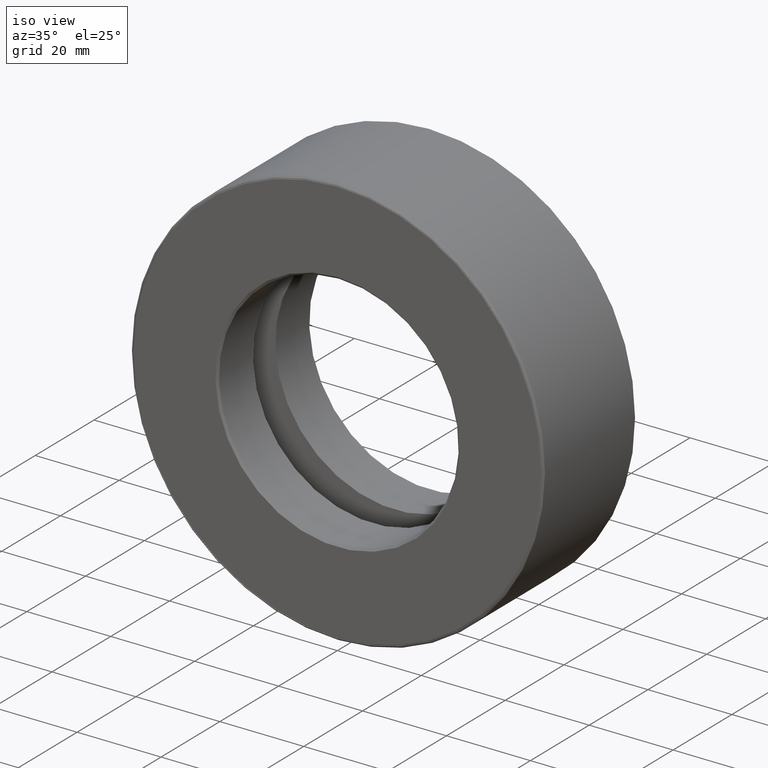
[diagram: clean part render]
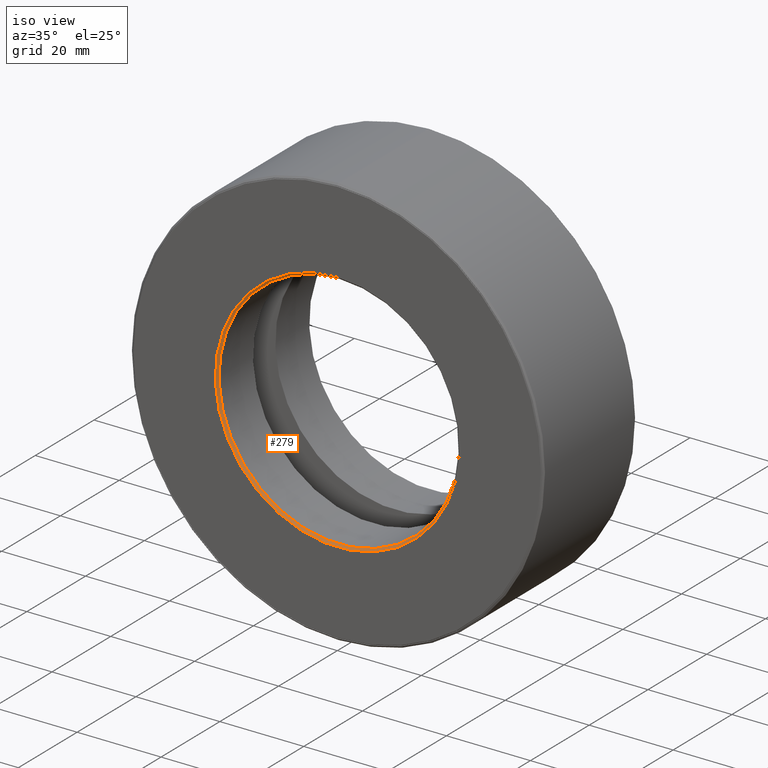
[diagram: same view with one face highlighted and labeled with its STEP entity id]
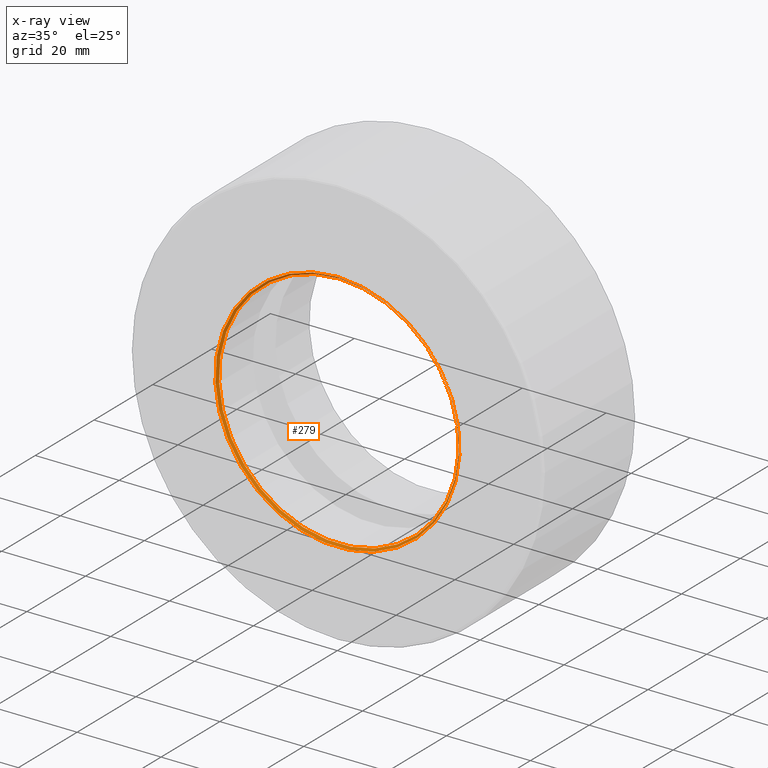
[diagram: x-ray of the same camera — body ghosted, the highlighted face saturated]
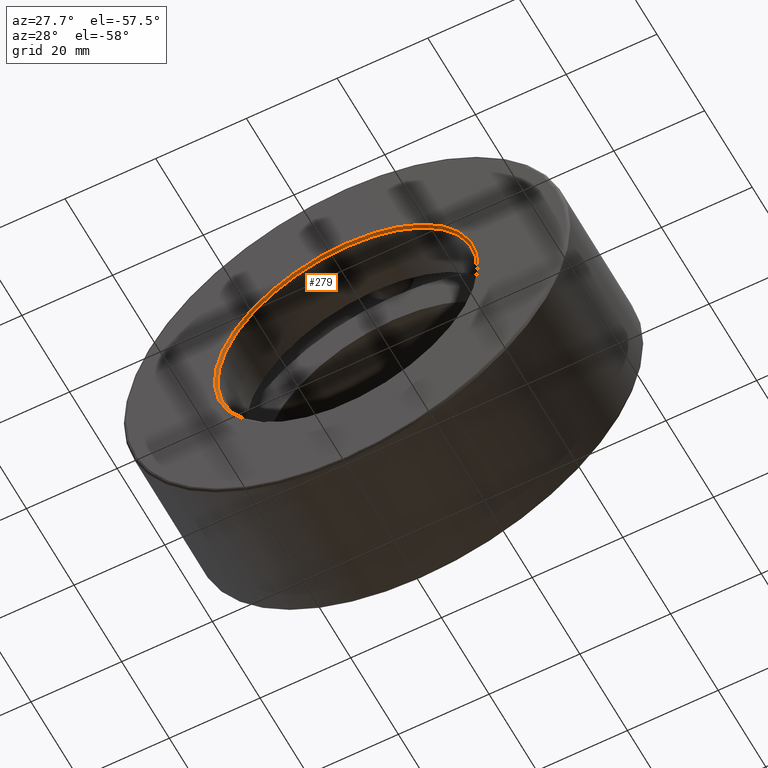
[diagram: same view with one face highlighted and labeled with its STEP entity id]
A machine part, iso view. The second image highlights one B-rep face of the part: STEP entity #279.
The next image is the same camera in x-ray: the body ghosted, the highlighted face saturated — about 0% of this face is hidden behind the body in this view.
A second angle (auxiliary view) of the same face is appended — the face is thin or edge-on in the first view.
In plain terms, the highlighted conical surface has half-angle 45 deg.
Its self-contained STEP definition (entity closure, byte-faithful):
#17 = DIRECTION ( 'NONE',  ( 0.0000000000000000000, 0.0000000000000000000, -1.000000000000000000 ) ) ;
#28 = AXIS2_PLACEMENT_3D ( 'NONE', #521, #386, #59 ) ;
#58 = ORIENTED_EDGE ( 'NONE', *, *, #103, .F. ) ;
#59 = DIRECTION ( 'NONE',  ( 0.0000000000000000000, 0.0000000000000000000, 1.000000000000000000 ) ) ;
#75 = DIRECTION ( 'NONE',  ( -0.0000000000000000000, 1.000000000000000000, -0.0000000000000000000 ) ) ;
#103 = EDGE_CURVE ( 'NONE', #207, #207, #479, .T. ) ;
#106 = ORIENTED_EDGE ( 'NONE', *, *, #351, .T. ) ;
#108 = CARTESIAN_POINT ( 'NONE',  ( 0.0000000000000000000, 0.02000000000000033300, 0.0000000000000000000 ) ) ;
#166 = CIRCLE ( 'NONE', #211, 1.125000000000000000 ) ;
#179 = AXIS2_PLACEMENT_3D ( 'NONE', #108, #426, #17 ) ;
#207 = VERTEX_POINT ( 'NONE', #498 ) ;
#211 = AXIS2_PLACEMENT_3D ( 'NONE', #359, #75, #397 ) ;
#279 = ADVANCED_FACE ( 'NONE', ( #546, #360 ), #487, .F. ) ;
#351 = EDGE_CURVE ( 'NONE', #585, #585, #166, .T. ) ;
#359 = CARTESIAN_POINT ( 'NONE',  ( 0.0000000000000000000, 0.02000000000000033300, 0.0000000000000000000 ) ) ;
#360 = FACE_BOUND ( 'NONE', #599, .T. ) ;
#386 = DIRECTION ( 'NONE',  ( -0.0000000000000000000, 1.000000000000000000, -0.0000000000000000000 ) ) ;
#397 = DIRECTION ( 'NONE',  ( 0.0000000000000000000, 0.0000000000000000000, 1.000000000000000000 ) ) ;
#400 = EDGE_LOOP ( 'NONE', ( #58 ) ) ;
#426 = DIRECTION ( 'NONE',  ( 0.0000000000000000000, -1.000000000000000000, 0.0000000000000000000 ) ) ;
#458 = CARTESIAN_POINT ( 'NONE',  ( 0.0000000000000000000, 0.02000000000000033300, 1.125000000000000000 ) ) ;
#479 = CIRCLE ( 'NONE', #28, 1.145000000000000200 ) ;
#487 = CONICAL_SURFACE ( 'NONE', #179, 1.125000000000000000, 0.7853981633974449500 ) ;
#498 = CARTESIAN_POINT ( 'NONE',  ( 0.0000000000000000000, 0.0000000000000000000, 1.145000000000000200 ) ) ;
#521 = CARTESIAN_POINT ( 'NONE',  ( 0.0000000000000000000, 0.0000000000000000000, 0.0000000000000000000 ) ) ;
#546 = FACE_OUTER_BOUND ( 'NONE', #400, .T. ) ;
#585 = VERTEX_POINT ( 'NONE', #458 ) ;
#599 = EDGE_LOOP ( 'NONE', ( #106 ) ) ;